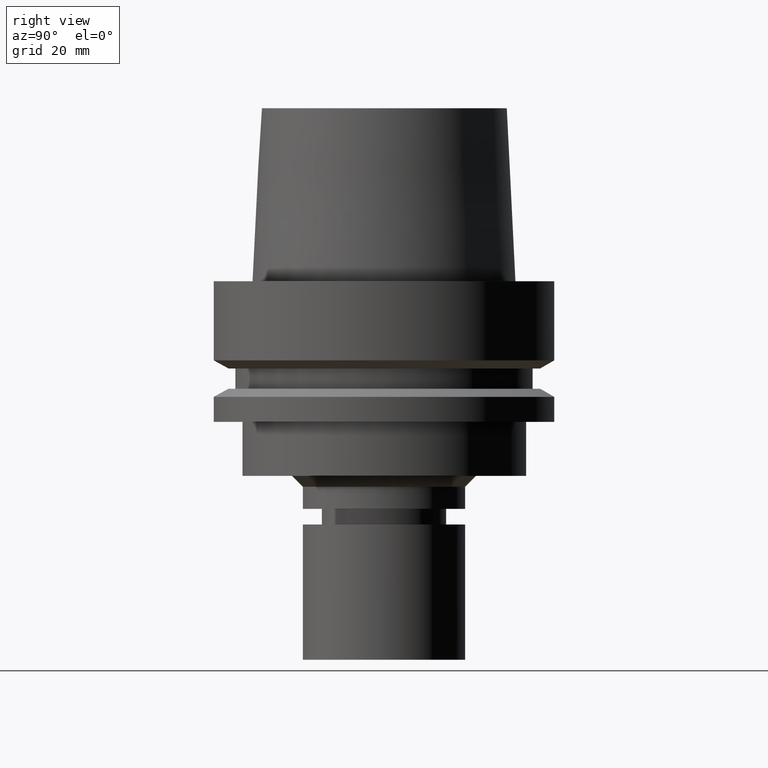
[diagram: clean part render]
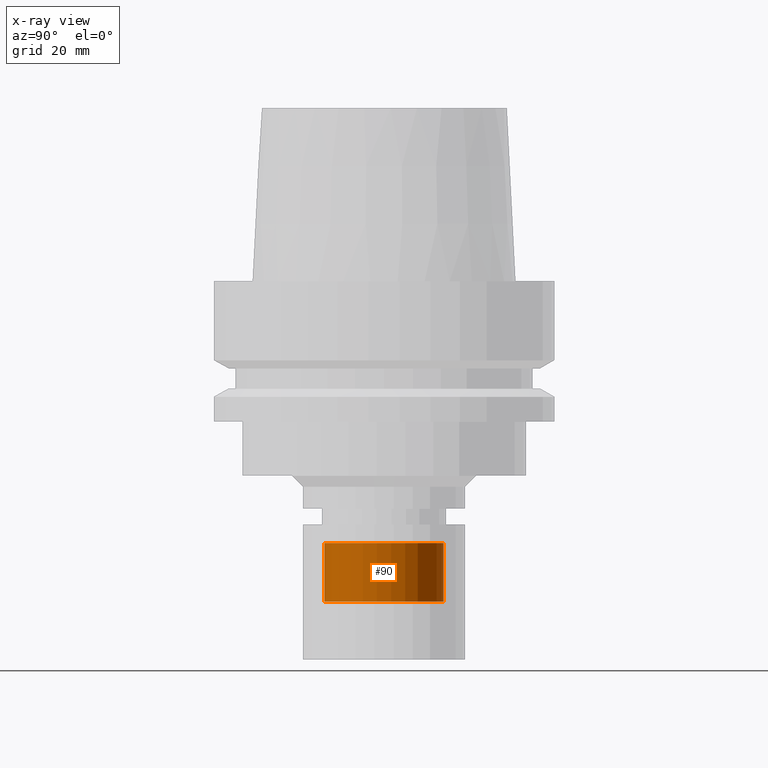
[diagram: x-ray — body ghosted, one internal face saturated and labeled with its STEP entity id]
A machine part, right view, then the same camera in x-ray: the body is ghosted and one INTERNAL B-rep face — a face not visible from any outside direction — is saturated and labeled: STEP entity #90.
In plain terms, the highlighted cylindrical surface (bore or boss wall) has radius 11 mm, axis along (-0, -0, 1).
Its self-contained STEP definition (entity closure, byte-faithful):
#90=ADVANCED_FACE('Unnamed[1]',(#233,#234),#235,.T.);
#101=EDGE_CURVE('Unnamed[1]',#252,#252,#253,.T.);
#137=EDGE_CURVE('Unnamed[1]',#308,#308,#309,.T.);
#233=FACE_BOUND('',#435,.T.);
#234=FACE_BOUND('',#436,.T.);
#235=CYLINDRICAL_SURFACE('',#437,11.0000000000001);
#252=VERTEX_POINT('',#458);
#253=CIRCLE('',#459,11.0000000000003);
#308=VERTEX_POINT('',#529);
#309=CIRCLE('',#530,10.9999999999999);
#435=EDGE_LOOP('',(#665));
#436=EDGE_LOOP('',(#666));
#437=AXIS2_PLACEMENT_3D('',#667,#668,#669);
#458=CARTESIAN_POINT('',(3.63075592913102E-015,11.0000000000003,-59.294744111672));
#459=AXIS2_PLACEMENT_3D('',#688,#689,#690);
#529=CARTESIAN_POINT('',(2.9655397891279E-015,10.9999999999999,-48.4309401076723));
#530=AXIS2_PLACEMENT_3D('',#750,#751,#752);
#665=ORIENTED_EDGE('',*,*,#137,.F.);
#666=ORIENTED_EDGE('',*,*,#101,.T.);
#667=CARTESIAN_POINT('',(3.29814785912946E-015,6.59629571825892E-015,-53.8628421096721));
#668=DIRECTION('',(-6.12323399573676E-017,-1.22464679914741E-016,1.0));
#669=DIRECTION('',(-1.23259516440782E-032,1.0,1.22464679914741E-016));
#688=CARTESIAN_POINT('',(3.63075592913102E-015,7.26151185826204E-015,-59.294744111672));
#689=DIRECTION('',(-6.12323399573676E-017,-1.22464679914739E-016,1.0));
#690=DIRECTION('',(-1.2325951644078E-032,1.0,1.22464679914739E-016));
#750=CARTESIAN_POINT('',(2.9655397891279E-015,5.9310795782558E-015,-48.4309401076723));
#751=DIRECTION('',(-6.12323399573677E-017,-1.22464679914743E-016,1.0));
#752=DIRECTION('',(-1.23259516440784E-032,1.0,1.22464679914743E-016));